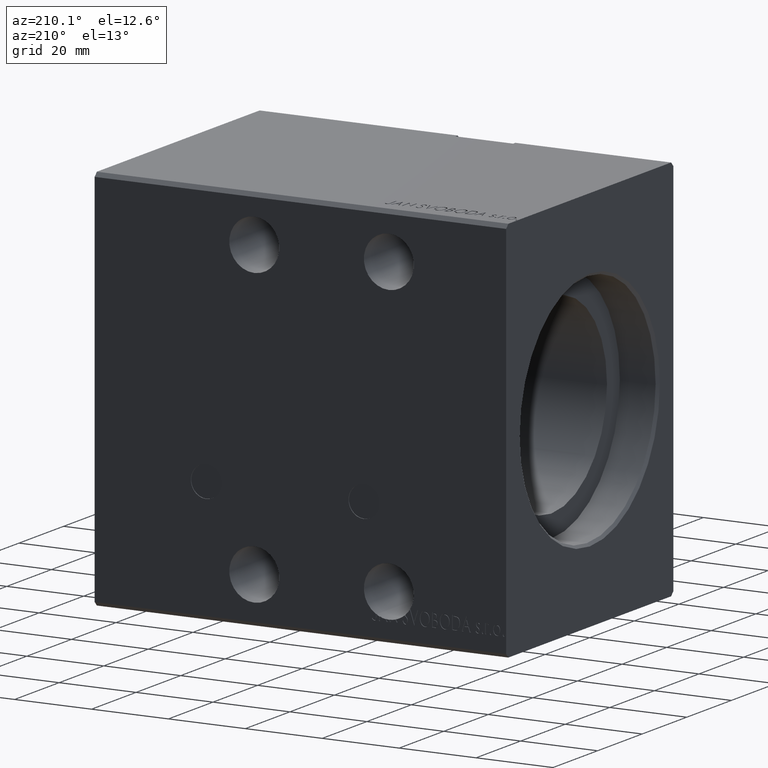
[diagram: clean part render]
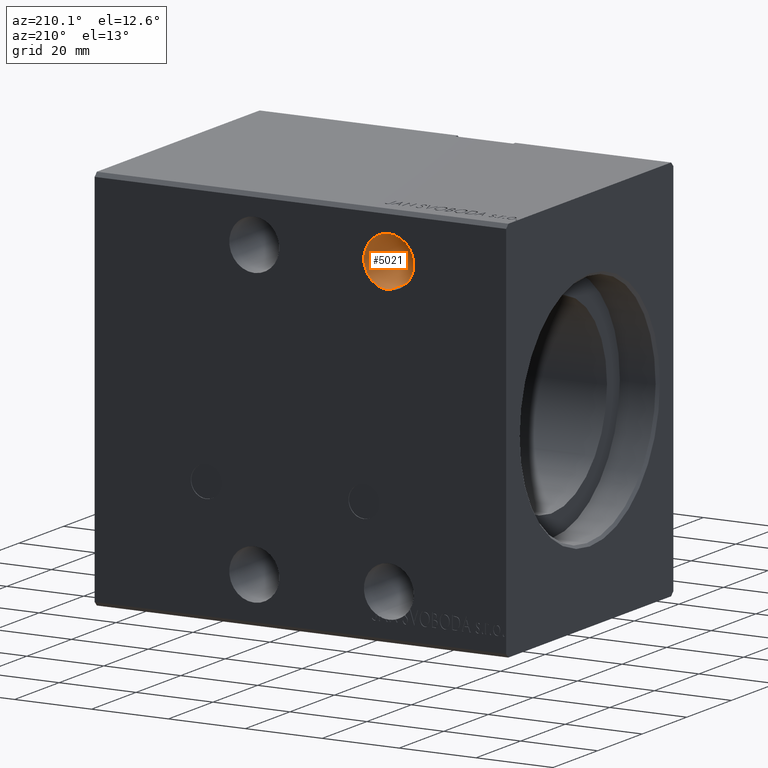
[diagram: same view with one face highlighted and labeled with its STEP entity id]
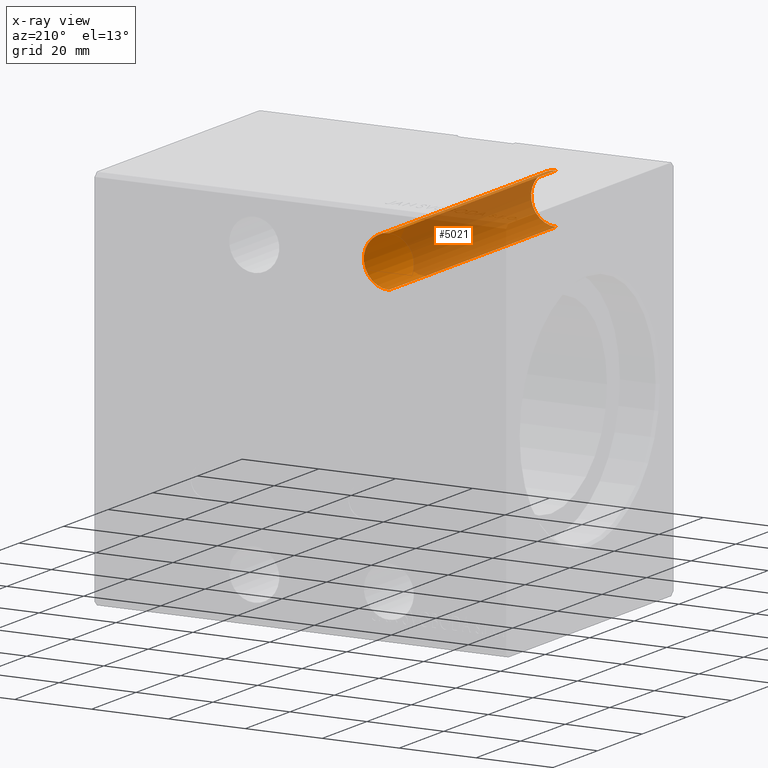
[diagram: x-ray of the same camera — body ghosted, the highlighted face saturated]
A machine part, auxiliary view. The second image highlights one B-rep face of the part: STEP entity #5021.
The next image is the same camera in x-ray: the body ghosted, the highlighted face saturated — about 76% of this face is hidden behind the body in this view.
In plain terms, the highlighted cylindrical surface (edge-blend (fillet) strip) has radius 6.5 mm, axis along (-0, -1, -0).
Its self-contained STEP definition (entity closure, byte-faithful):
#216 = LINE ( 'NONE', #25748, #31252 ) ;
#293 = AXIS2_PLACEMENT_3D ( 'NONE', #36577, #7754, #14947 ) ;
#443 = CARTESIAN_POINT ( 'NONE',  ( 30.99318497280284035, 37.50000000000002842, 44.48126288485519808 ) ) ;
#749 = CARTESIAN_POINT ( 'NONE',  ( 32.55509697384804468, 37.50000000000002842, 44.16656925916515064 ) ) ;
#1184 = VERTEX_POINT ( 'NONE', #2371 ) ;
#1474 = CARTESIAN_POINT ( 'NONE',  ( 33.83333333333333570, 37.50000000000002842, 43.58022301426106537 ) ) ;
#2362 = LINE ( 'NONE', #39849, #18153 ) ;
#2371 = CARTESIAN_POINT ( 'NONE',  ( 33.83333333333333570, -37.50000000000001421, 43.58022301426105827 ) ) ;
#2443 = DIRECTION ( 'NONE',  ( 0.000000000000000000, 0.000000000000000000, -1.000000000000000000 ) ) ;
#2533 = EDGE_CURVE ( 'NONE', #34098, #11270, #35753, .T. ) ;
#2876 = VECTOR ( 'NONE', #8382, 1000.000000000000000 ) ;
#3441 = ORIENTED_EDGE ( 'NONE', *, *, #22881, .F. ) ;
#3774 = CARTESIAN_POINT ( 'NONE',  ( 33.56410256410256920, -37.50000000000001421, 43.73247551034106095 ) ) ;
#3966 = ORIENTED_EDGE ( 'NONE', *, *, #14228, .T. ) ;
#4426 = CARTESIAN_POINT ( 'NONE',  ( 30.50000000000000000, -37.50000000000001421, 37.99999999999999289 ) ) ;
#4481 = CARTESIAN_POINT ( 'NONE',  ( 31.29599030024983364, -37.50000000000001421, 44.45107738613544512 ) ) ;
#4891 = DIRECTION ( 'NONE',  ( 0.000000000000000000, 0.000000000000000000, 1.000000000000000000 ) ) ;
#5021 = ADVANCED_FACE ( 'NONE', ( #24070 ), #36628, .F. ) ;
#5054 = CIRCLE ( 'NONE', #33337, 6.499999999999999112 ) ;
#5284 = CARTESIAN_POINT ( 'NONE',  ( 30.50000000000000000, 37.50000000000002842, 31.50000000000000000 ) ) ;
#6660 = CIRCLE ( 'NONE', #29707, 6.499999999999999112 ) ;
#7044 = VERTEX_POINT ( 'NONE', #4481 ) ;
#7126 = EDGE_CURVE ( 'NONE', #8339, #12961, #17445, .T. ) ;
#7285 = CARTESIAN_POINT ( 'NONE',  ( 30.99318497280284035, -37.50000000000001421, 44.48126288485519098 ) ) ;
#7332 = DIRECTION ( 'NONE',  ( 0.000000000000000000, 1.000000000000000000, 5.507058653894625853E-17 ) ) ;
#7393 = ORIENTED_EDGE ( 'NONE', *, *, #27519, .F. ) ;
#7754 = DIRECTION ( 'NONE',  ( -0.000000000000000000, 1.000000000000000000, 0.000000000000000000 ) ) ;
#8061 = DIRECTION ( 'NONE',  ( 0.000000000000000000, 1.000000000000000000, 5.507058653894625853E-17 ) ) ;
#8207 = CARTESIAN_POINT ( 'NONE',  ( 30.50000000000000000, 37.50000000000002842, 38.00000000000000000 ) ) ;
#8339 = VERTEX_POINT ( 'NONE', #30814 ) ;
#8382 = DIRECTION ( 'NONE',  ( -0.000000000000000000, -1.000000000000000000, -5.507058653894625853E-17 ) ) ;
#9309 = CARTESIAN_POINT ( 'NONE',  ( 30.50000000000000000, -37.29999999999999005, 37.99999999999999289 ) ) ;
#9473 = DIRECTION ( 'NONE',  ( 0.000000000000000000, -1.000000000000000000, -5.507058653894625853E-17 ) ) ;
#9561 = ORIENTED_EDGE ( 'NONE', *, *, #39450, .T. ) ;
#9677 = CARTESIAN_POINT ( 'NONE',  ( 30.50000000000000000, 37.50000000000002842, 38.00000000000000000 ) ) ;
#9870 = EDGE_CURVE ( 'NONE', #7044, #12550, #20663, .T. ) ;
#10020 = DIRECTION ( 'NONE',  ( 0.000000000000000000, 0.000000000000000000, 1.000000000000000000 ) ) ;
#10092 = DIRECTION ( 'NONE',  ( 0.000000000000000000, 1.000000000000000000, 5.507058653894625853E-17 ) ) ;
#10115 = VERTEX_POINT ( 'NONE', #7285 ) ;
#10321 = ORIENTED_EDGE ( 'NONE', *, *, #35557, .F. ) ;
#11270 = VERTEX_POINT ( 'NONE', #14647 ) ;
#11399 = CARTESIAN_POINT ( 'NONE',  ( 30.99318497280284035, -37.29999999999999005, 44.48126288485518387 ) ) ;
#11623 = EDGE_CURVE ( 'NONE', #7044, #14521, #216, .T. ) ;
#11878 = CARTESIAN_POINT ( 'NONE',  ( 31.29599030024982653, -37.30000000000000426, 44.45107738613544512 ) ) ;
#12358 = ORIENTED_EDGE ( 'NONE', *, *, #36569, .F. ) ;
#12396 = CARTESIAN_POINT ( 'NONE',  ( 30.50000000000000000, 37.50000000000002842, 44.50000000000000000 ) ) ;
#12550 = VERTEX_POINT ( 'NONE', #38370 ) ;
#12799 = ORIENTED_EDGE ( 'NONE', *, *, #14779, .F. ) ;
#12867 = AXIS2_PLACEMENT_3D ( 'NONE', #4426, #32649, #16987 ) ;
#12961 = VERTEX_POINT ( 'NONE', #24860 ) ;
#12998 = DIRECTION ( 'NONE',  ( -0.000000000000000000, -1.000000000000000000, -5.507058653894625853E-17 ) ) ;
#13219 = ORIENTED_EDGE ( 'NONE', *, *, #2533, .T. ) ;
#13403 = VERTEX_POINT ( 'NONE', #3774 ) ;
#13985 = CARTESIAN_POINT ( 'NONE',  ( 33.56410256410256920, 37.50000000000002842, 43.73247551034106806 ) ) ;
#14157 = CARTESIAN_POINT ( 'NONE',  ( 30.50000000000000000, -37.29999999999999005, 37.99999999999999289 ) ) ;
#14228 = EDGE_CURVE ( 'NONE', #28519, #14604, #26021, .T. ) ;
#14521 = VERTEX_POINT ( 'NONE', #11878 ) ;
#14604 = VERTEX_POINT ( 'NONE', #19465 ) ;
#14647 = CARTESIAN_POINT ( 'NONE',  ( 32.81813518084482695, -37.29999999999999005, 44.07258176423582796 ) ) ;
#14670 = ORIENTED_EDGE ( 'NONE', *, *, #26123, .T. ) ;
#14779 = EDGE_CURVE ( 'NONE', #34098, #13403, #34588, .T. ) ;
#14929 = EDGE_CURVE ( 'NONE', #19514, #20644, #2362, .T. ) ;
#14947 = DIRECTION ( 'NONE',  ( 0.000000000000000000, 0.000000000000000000, 1.000000000000000000 ) ) ;
#15093 = CIRCLE ( 'NONE', #19705, 6.499999999999999112 ) ;
#15314 = DIRECTION ( 'NONE',  ( -0.000000000000000000, -1.000000000000000000, -5.507058653894625853E-17 ) ) ;
#15491 = DIRECTION ( 'NONE',  ( 0.000000000000000000, 1.000000000000000000, -0.000000000000000000 ) ) ;
#15514 = CARTESIAN_POINT ( 'NONE',  ( 30.50000000000000000, -37.50000000000001421, 37.99999999999999289 ) ) ;
#15578 = AXIS2_PLACEMENT_3D ( 'NONE', #14157, #26730, #4891 ) ;
#15907 = DIRECTION ( 'NONE',  ( -0.000000000000000000, 1.000000000000000000, 0.000000000000000000 ) ) ;
#16594 = VECTOR ( 'NONE', #8061, 1000.000000000000000 ) ;
#16608 = AXIS2_PLACEMENT_3D ( 'NONE', #8207, #37030, #2443 ) ;
#16630 = VECTOR ( 'NONE', #12998, 1000.000000000000000 ) ;
#16733 = VERTEX_POINT ( 'NONE', #28559 ) ;
#16987 = DIRECTION ( 'NONE',  ( 0.000000000000000000, 0.000000000000000000, 1.000000000000000000 ) ) ;
#17445 = LINE ( 'NONE', #5284, #2876 ) ;
#17768 = EDGE_CURVE ( 'NONE', #1184, #12961, #5054, .T. ) ;
#18153 = VECTOR ( 'NONE', #15314, 1000.000000000000000 ) ;
#18560 = ORIENTED_EDGE ( 'NONE', *, *, #9870, .F. ) ;
#19038 = ORIENTED_EDGE ( 'NONE', *, *, #40679, .T. ) ;
#19095 = CARTESIAN_POINT ( 'NONE',  ( 30.50000000000000000, -37.50000000000001421, 37.99999999999999289 ) ) ;
#19465 = CARTESIAN_POINT ( 'NONE',  ( 33.56410256410256920, -37.30000000000000426, 43.73247551034106095 ) ) ;
#19504 = ORIENTED_EDGE ( 'NONE', *, *, #14929, .F. ) ;
#19514 = VERTEX_POINT ( 'NONE', #12396 ) ;
#19700 = DIRECTION ( 'NONE',  ( -0.000000000000000000, -1.000000000000000000, -5.507058653894625853E-17 ) ) ;
#19705 = AXIS2_PLACEMENT_3D ( 'NONE', #15514, #15907, #28488 ) ;
#20644 = VERTEX_POINT ( 'NONE', #22169 ) ;
#20663 = CIRCLE ( 'NONE', #293, 6.499999999999999112 ) ;
#21134 = AXIS2_PLACEMENT_3D ( 'NONE', #9309, #15491, #40225 ) ;
#21641 = VERTEX_POINT ( 'NONE', #11399 ) ;
#22169 = CARTESIAN_POINT ( 'NONE',  ( 30.50000000000000000, -37.50000000000001421, 44.49999999999999289 ) ) ;
#22789 = CARTESIAN_POINT ( 'NONE',  ( 32.81813518084482695, 37.50000000000002842, 44.07258176423582796 ) ) ;
#22881 = EDGE_CURVE ( 'NONE', #21641, #14521, #27446, .T. ) ;
#23129 = DIRECTION ( 'NONE',  ( 0.000000000000000000, -1.000000000000000000, 0.000000000000000000 ) ) ;
#23883 = DIRECTION ( 'NONE',  ( -0.000000000000000000, -1.000000000000000000, -5.507058653894625853E-17 ) ) ;
#24070 = FACE_OUTER_BOUND ( 'NONE', #27205, .T. ) ;
#24860 = CARTESIAN_POINT ( 'NONE',  ( 30.50000000000000000, -37.50000000000001421, 31.49999999999999289 ) ) ;
#25748 = CARTESIAN_POINT ( 'NONE',  ( 31.29599030024982653, 37.50000000000002842, 44.45107738613544512 ) ) ;
#26021 = CIRCLE ( 'NONE', #39206, 6.499999999999999112 ) ;
#26123 = EDGE_CURVE ( 'NONE', #16733, #12550, #26493, .T. ) ;
#26493 = LINE ( 'NONE', #749, #40652 ) ;
#26608 = LINE ( 'NONE', #1474, #16594 ) ;
#26730 = DIRECTION ( 'NONE',  ( 0.000000000000000000, 1.000000000000000000, -0.000000000000000000 ) ) ;
#27205 = EDGE_LOOP ( 'NONE', ( #19504, #12358, #35416, #31333, #9561, #3966, #37869, #12799, #13219, #10321, #14670, #18560, #34162, #3441, #19038, #7393 ) ) ;
#27446 = CIRCLE ( 'NONE', #15578, 6.499999999999999112 ) ;
#27519 = EDGE_CURVE ( 'NONE', #20644, #10115, #15093, .T. ) ;
#28488 = DIRECTION ( 'NONE',  ( 0.000000000000000000, 0.000000000000000000, 1.000000000000000000 ) ) ;
#28519 = VERTEX_POINT ( 'NONE', #38448 ) ;
#28559 = CARTESIAN_POINT ( 'NONE',  ( 32.55509697384804468, -37.29999999999999005, 44.16656925916514354 ) ) ;
#28668 = LINE ( 'NONE', #443, #16630 ) ;
#29707 = AXIS2_PLACEMENT_3D ( 'NONE', #9677, #9473, #40400 ) ;
#30074 = LINE ( 'NONE', #13985, #36979 ) ;
#30814 = CARTESIAN_POINT ( 'NONE',  ( 30.50000000000000000, 37.50000000000002842, 31.50000000000000000 ) ) ;
#31252 = VECTOR ( 'NONE', #10092, 1000.000000000000000 ) ;
#31333 = ORIENTED_EDGE ( 'NONE', *, *, #17768, .F. ) ;
#32406 = CARTESIAN_POINT ( 'NONE',  ( 30.50000000000000000, -37.30000000000000426, 37.99999999999999289 ) ) ;
#32617 = DIRECTION ( 'NONE',  ( 0.000000000000000000, 0.000000000000000000, -1.000000000000000000 ) ) ;
#32649 = DIRECTION ( 'NONE',  ( -0.000000000000000000, 1.000000000000000000, 0.000000000000000000 ) ) ;
#33337 = AXIS2_PLACEMENT_3D ( 'NONE', #19095, #38250, #10020 ) ;
#34098 = VERTEX_POINT ( 'NONE', #37012 ) ;
#34162 = ORIENTED_EDGE ( 'NONE', *, *, #11623, .T. ) ;
#34588 = CIRCLE ( 'NONE', #12867, 6.499999999999999112 ) ;
#35416 = ORIENTED_EDGE ( 'NONE', *, *, #7126, .T. ) ;
#35557 = EDGE_CURVE ( 'NONE', #16733, #11270, #38218, .T. ) ;
#35753 = LINE ( 'NONE', #22789, #38405 ) ;
#36569 = EDGE_CURVE ( 'NONE', #8339, #19514, #6660, .T. ) ;
#36577 = CARTESIAN_POINT ( 'NONE',  ( 30.50000000000000000, -37.50000000000001421, 37.99999999999999289 ) ) ;
#36628 = CYLINDRICAL_SURFACE ( 'NONE', #16608, 6.499999999999999112 ) ;
#36979 = VECTOR ( 'NONE', #23883, 1000.000000000000000 ) ;
#37012 = CARTESIAN_POINT ( 'NONE',  ( 32.81813518084482695, -37.50000000000001421, 44.07258176423582086 ) ) ;
#37030 = DIRECTION ( 'NONE',  ( -0.000000000000000000, -1.000000000000000000, -5.507058653894625853E-17 ) ) ;
#37869 = ORIENTED_EDGE ( 'NONE', *, *, #39601, .T. ) ;
#38218 = CIRCLE ( 'NONE', #21134, 6.499999999999999112 ) ;
#38250 = DIRECTION ( 'NONE',  ( -0.000000000000000000, 1.000000000000000000, 0.000000000000000000 ) ) ;
#38370 = CARTESIAN_POINT ( 'NONE',  ( 32.55509697384804468, -37.50000000000001421, 44.16656925916514354 ) ) ;
#38405 = VECTOR ( 'NONE', #7332, 1000.000000000000000 ) ;
#38448 = CARTESIAN_POINT ( 'NONE',  ( 33.83333333333333570, -37.30000000000000426, 43.58022301426105827 ) ) ;
#39206 = AXIS2_PLACEMENT_3D ( 'NONE', #32406, #23129, #32617 ) ;
#39450 = EDGE_CURVE ( 'NONE', #1184, #28519, #26608, .T. ) ;
#39601 = EDGE_CURVE ( 'NONE', #14604, #13403, #30074, .T. ) ;
#39849 = CARTESIAN_POINT ( 'NONE',  ( 30.50000000000000000, 37.50000000000002842, 44.50000000000000000 ) ) ;
#40225 = DIRECTION ( 'NONE',  ( 0.000000000000000000, 0.000000000000000000, 1.000000000000000000 ) ) ;
#40400 = DIRECTION ( 'NONE',  ( 0.000000000000000000, 0.000000000000000000, -1.000000000000000000 ) ) ;
#40652 = VECTOR ( 'NONE', #19700, 1000.000000000000000 ) ;
#40679 = EDGE_CURVE ( 'NONE', #21641, #10115, #28668, .T. ) ;